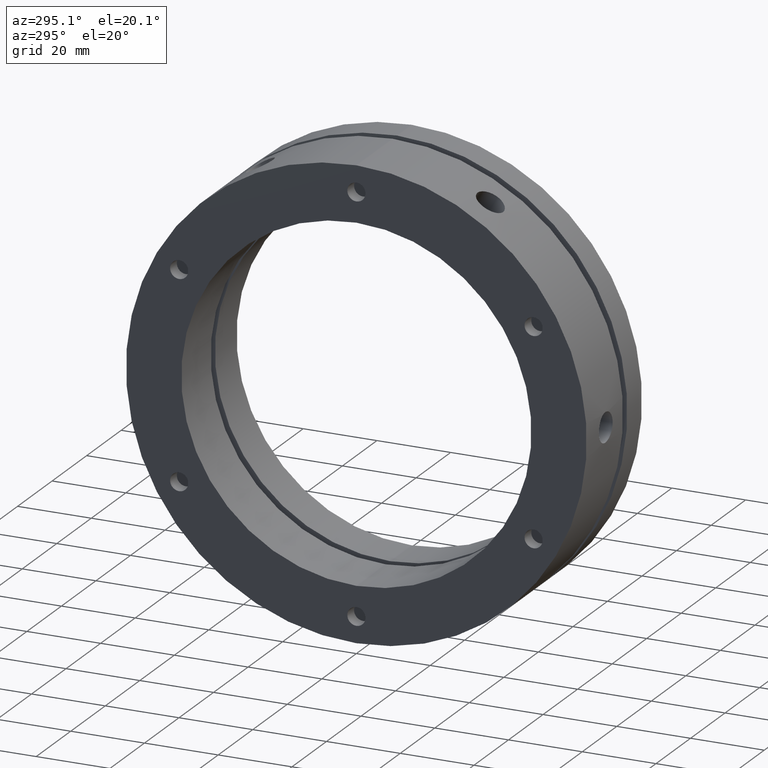
[diagram: clean part render]
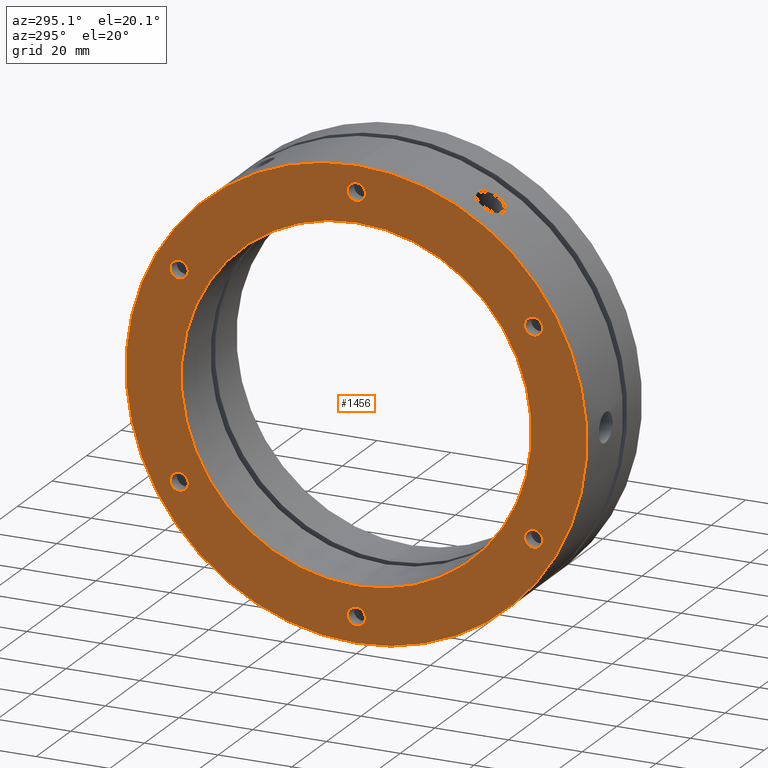
[diagram: same view with one face highlighted and labeled with its STEP entity id]
A machine part, auxiliary view. The second image highlights one B-rep face of the part: STEP entity #1456.
In plain terms, the highlighted planar face has unit normal (-1, 0, 0).
Its self-contained STEP definition (entity closure, byte-faithful):
#25 = VERTEX_POINT ( 'NONE', #1066 ) ;
#31 = VERTEX_POINT ( 'NONE', #1072 ) ;
#38 = VERTEX_POINT ( 'NONE', #1079 ) ;
#47 = VERTEX_POINT ( 'NONE', #1088 ) ;
#79 = VERTEX_POINT ( 'NONE', #1120 ) ;
#113 = VERTEX_POINT ( 'NONE', #1154 ) ;
#115 = VERTEX_POINT ( 'NONE', #1156 ) ;
#132 = VERTEX_POINT ( 'NONE', #1173 ) ;
#133 = VERTEX_POINT ( 'NONE', #1174 ) ;
#159 = VERTEX_POINT ( 'NONE', #1200 ) ;
#169 = VERTEX_POINT ( 'NONE', #1202 ) ;
#182 = VERTEX_POINT ( 'NONE', #1221 ) ;
#184 = VERTEX_POINT ( 'NONE', #1223 ) ;
#186 = VERTEX_POINT ( 'NONE', #1225 ) ;
#187 = VERTEX_POINT ( 'NONE', #1226 ) ;
#189 = VERTEX_POINT ( 'NONE', #1228 ) ;
#524 = CIRCLE ( 'NONE', #3814, 47.50000000000000000 ) ;
#585 = AXIS2_PLACEMENT_3D ( 'NONE', #4289, #4290, #4291 ) ;
#760 = CIRCLE ( 'NONE', #3840, 2.458499999999999000 ) ;
#764 = CIRCLE ( 'NONE', #3842, 2.458500000000002600 ) ;
#847 = EDGE_CURVE ( 'NONE', #189, #186, #764, .T. ) ;
#850 = EDGE_CURVE ( 'NONE', #187, #182, #760, .T. ) ;
#853 = EDGE_CURVE ( 'NONE', #25, #169, #3418, .T. ) ;
#858 = EDGE_CURVE ( 'NONE', #159, #184, #3413, .T. ) ;
#863 = EDGE_CURVE ( 'NONE', #133, #79, #3405, .T. ) ;
#888 = EDGE_CURVE ( 'NONE', #38, #47, #3364, .T. ) ;
#915 = ORIENTED_EDGE ( 'NONE', *, *, #3871, .F. ) ;
#916 = ORIENTED_EDGE ( 'NONE', *, *, #4019, .F. ) ;
#917 = ORIENTED_EDGE ( 'NONE', *, *, #3854, .T. ) ;
#918 = ORIENTED_EDGE ( 'NONE', *, *, #858, .T. ) ;
#919 = ORIENTED_EDGE ( 'NONE', *, *, #3857, .T. ) ;
#920 = ORIENTED_EDGE ( 'NONE', *, *, #853, .T. ) ;
#921 = ORIENTED_EDGE ( 'NONE', *, *, #3847, .T. ) ;
#922 = ORIENTED_EDGE ( 'NONE', *, *, #847, .T. ) ;
#923 = ORIENTED_EDGE ( 'NONE', *, *, #3863, .T. ) ;
#924 = ORIENTED_EDGE ( 'NONE', *, *, #850, .T. ) ;
#925 = ORIENTED_EDGE ( 'NONE', *, *, #3858, .T. ) ;
#926 = ORIENTED_EDGE ( 'NONE', *, *, #863, .T. ) ;
#927 = ORIENTED_EDGE ( 'NONE', *, *, #3860, .T. ) ;
#928 = ORIENTED_EDGE ( 'NONE', *, *, #888, .T. ) ;
#929 = ORIENTED_EDGE ( 'NONE', *, *, #1402, .T. ) ;
#930 = ORIENTED_EDGE ( 'NONE', *, *, #3859, .T. ) ;
#1066 = CARTESIAN_POINT ( 'NONE',  ( -1.561251128379126400E-014, 48.06440991003636000, -25.29150000000003500 ) ) ;
#1072 = CARTESIAN_POINT ( 'NONE',  ( -1.387778780781445700E-014, 5.817072295949928200E-015, 47.50000000000000000 ) ) ;
#1079 = CARTESIAN_POINT ( 'NONE',  ( -1.561251128379126400E-014, 0.0000000000000000000, 57.95850000000002900 ) ) ;
#1088 = CARTESIAN_POINT ( 'NONE',  ( -1.561251128379126400E-014, 3.010794155703764200E-016, 53.04150000000002800 ) ) ;
#1120 = CARTESIAN_POINT ( 'NONE',  ( -1.561251128379126400E-014, -48.06440991003636800, 25.29150000000002100 ) ) ;
#1154 = CARTESIAN_POINT ( 'NONE',  ( -1.387778780781445700E-014, 0.0000000000000000000, -47.50000000000000000 ) ) ;
#1156 = CARTESIAN_POINT ( 'NONE',  ( -1.734723475976807100E-014, 0.0000000000000000000, -62.50000000000000000 ) ) ;
#1173 = CARTESIAN_POINT ( 'NONE',  ( -1.734723475976807100E-014, 7.654042494670957800E-015, 62.50000000000000000 ) ) ;
#1174 = CARTESIAN_POINT ( 'NONE',  ( -1.561251128379126400E-014, -48.06440991003636800, 30.20850000000001500 ) ) ;
#1200 = CARTESIAN_POINT ( 'NONE',  ( -1.561251128379126400E-014, 48.06440991003638900, 30.20849999999998300 ) ) ;
#1202 = CARTESIAN_POINT ( 'NONE',  ( -1.561251128379126400E-014, 48.06440991003636000, -30.20850000000003300 ) ) ;
#1221 = CARTESIAN_POINT ( 'NONE',  ( -1.561251128379126400E-014, -48.06440991003636800, -30.20850000000000400 ) ) ;
#1223 = CARTESIAN_POINT ( 'NONE',  ( -1.561251128379126400E-014, 48.06440991003638900, 25.29149999999997800 ) ) ;
#1225 = CARTESIAN_POINT ( 'NONE',  ( -1.561251128379126400E-014, -4.139812584429623600E-015, -57.95850000000002900 ) ) ;
#1226 = CARTESIAN_POINT ( 'NONE',  ( -1.561251128379126400E-014, -48.06440991003636800, -25.29150000000000600 ) ) ;
#1228 = CARTESIAN_POINT ( 'NONE',  ( -1.561251128379126400E-014, -4.440891999999999900E-015, -53.04150000000002800 ) ) ;
#1275 = CARTESIAN_POINT ( 'NONE',  ( -1.561251128379126400E-014, -4.440891999999999900E-015, -55.50000000000002800 ) ) ;
#1276 = DIRECTION ( 'NONE',  ( 1.000000000000000000, -0.0000000000000000000, -0.0000000000000000000 ) ) ;
#1277 = DIRECTION ( 'NONE',  ( 0.0000000000000000000, 0.0000000000000000000, 1.000000000000000000 ) ) ;
#1284 = CARTESIAN_POINT ( 'NONE',  ( -1.561251128379126400E-014, -48.06440991003636800, -27.75000000000000400 ) ) ;
#1285 = DIRECTION ( 'NONE',  ( 1.000000000000000000, -0.0000000000000000000, -0.0000000000000000000 ) ) ;
#1286 = DIRECTION ( 'NONE',  ( 0.0000000000000000000, 0.0000000000000000000, 1.000000000000000000 ) ) ;
#1290 = CARTESIAN_POINT ( 'NONE',  ( -1.561251128379126400E-014, 48.06440991003636000, -27.75000000000003600 ) ) ;
#1291 = DIRECTION ( 'NONE',  ( 1.000000000000000000, -0.0000000000000000000, -0.0000000000000000000 ) ) ;
#1292 = DIRECTION ( 'NONE',  ( 0.0000000000000000000, 0.0000000000000000000, 1.000000000000000000 ) ) ;
#1302 = CARTESIAN_POINT ( 'NONE',  ( -1.561251128379126400E-014, 48.06440991003638900, 27.74999999999997900 ) ) ;
#1303 = DIRECTION ( 'NONE',  ( 1.000000000000000000, -0.0000000000000000000, -0.0000000000000000000 ) ) ;
#1304 = DIRECTION ( 'NONE',  ( 0.0000000000000000000, 0.0000000000000000000, 1.000000000000000000 ) ) ;
#1316 = CARTESIAN_POINT ( 'NONE',  ( -1.561251128379126400E-014, -48.06440991003636800, 27.75000000000001800 ) ) ;
#1317 = DIRECTION ( 'NONE',  ( 1.000000000000000000, -0.0000000000000000000, -0.0000000000000000000 ) ) ;
#1318 = DIRECTION ( 'NONE',  ( 0.0000000000000000000, 0.0000000000000000000, 1.000000000000000000 ) ) ;
#1402 = EDGE_CURVE ( 'NONE', #31, #113, #524, .T. ) ;
#1456 = ADVANCED_FACE ( 'NONE', ( #1654, #1650, #1653, #1657, #1652, #1649, #1648, #1647 ), #2622, .T. ) ;
#1647 = FACE_OUTER_BOUND ( 'NONE', #3729, .T. ) ;
#1648 = FACE_BOUND ( 'NONE', #3730, .T. ) ;
#1649 = FACE_BOUND ( 'NONE', #3731, .T. ) ;
#1650 = FACE_BOUND ( 'NONE', #3738, .T. ) ;
#1652 = FACE_BOUND ( 'NONE', #3737, .T. ) ;
#1653 = FACE_BOUND ( 'NONE', #3735, .T. ) ;
#1654 = FACE_BOUND ( 'NONE', #3732, .T. ) ;
#1657 = FACE_BOUND ( 'NONE', #3736, .T. ) ;
#1914 = CIRCLE ( 'NONE', #3505, 2.458500000000002600 ) ;
#1923 = CIRCLE ( 'NONE', #3498, 2.458500000000002600 ) ;
#1927 = CIRCLE ( 'NONE', #3495, 2.458499999999999000 ) ;
#1928 = CIRCLE ( 'NONE', #3494, 2.458499999999999000 ) ;
#1929 = CIRCLE ( 'NONE', #3493, 47.50000000000000000 ) ;
#1930 = CIRCLE ( 'NONE', #3492, 2.458500000000002600 ) ;
#1932 = CIRCLE ( 'NONE', #3491, 2.458499999999999000 ) ;
#1940 = CIRCLE ( 'NONE', #3488, 62.50000000000000000 ) ;
#2142 = CIRCLE ( 'NONE', #585, 62.50000000000000000 ) ;
#2406 = CARTESIAN_POINT ( 'NONE',  ( -1.561251128379126400E-014, 0.0000000000000000000, 55.50000000000002800 ) ) ;
#2407 = DIRECTION ( 'NONE',  ( 1.000000000000000000, -0.0000000000000000000, -0.0000000000000000000 ) ) ;
#2408 = DIRECTION ( 'NONE',  ( 0.0000000000000000000, 0.0000000000000000000, 1.000000000000000000 ) ) ;
#2469 = CARTESIAN_POINT ( 'NONE',  ( -1.387778780781445700E-014, 0.0000000000000000000, 0.0000000000000000000 ) ) ;
#2470 = DIRECTION ( 'NONE',  ( 1.000000000000000000, 0.0000000000000000000, 0.0000000000000000000 ) ) ;
#2471 = DIRECTION ( 'NONE',  ( 0.0000000000000000000, 0.0000000000000000000, -1.000000000000000000 ) ) ;
#2615 = CARTESIAN_POINT ( 'NONE',  ( -1.570630000000000000E-014, 55.00000000000000000, 0.0000000000000000000 ) ) ;
#2617 = DIRECTION ( 'NONE',  ( -1.000000000000000000, 0.0000000000000000000, 0.0000000000000000000 ) ) ;
#2622 = PLANE ( 'NONE',  #3780 ) ;
#2624 = DIRECTION ( 'NONE',  ( 0.0000000000000000000, 0.0000000000000000000, 1.000000000000000000 ) ) ;
#2994 = CARTESIAN_POINT ( 'NONE',  ( -1.561251128379126400E-014, -4.440891999999999900E-015, -55.50000000000002800 ) ) ;
#2995 = DIRECTION ( 'NONE',  ( 1.000000000000000000, -0.0000000000000000000, -0.0000000000000000000 ) ) ;
#2996 = DIRECTION ( 'NONE',  ( 0.0000000000000000000, 0.0000000000000000000, 1.000000000000000000 ) ) ;
#3015 = CARTESIAN_POINT ( 'NONE',  ( -1.561251128379126400E-014, 48.06440991003638900, 27.74999999999997900 ) ) ;
#3016 = DIRECTION ( 'NONE',  ( 1.000000000000000000, -0.0000000000000000000, -0.0000000000000000000 ) ) ;
#3017 = DIRECTION ( 'NONE',  ( 0.0000000000000000000, 0.0000000000000000000, 1.000000000000000000 ) ) ;
#3024 = CARTESIAN_POINT ( 'NONE',  ( -1.561251128379126400E-014, 48.06440991003636000, -27.75000000000003600 ) ) ;
#3025 = DIRECTION ( 'NONE',  ( 1.000000000000000000, -0.0000000000000000000, -0.0000000000000000000 ) ) ;
#3026 = DIRECTION ( 'NONE',  ( 0.0000000000000000000, 0.0000000000000000000, 1.000000000000000000 ) ) ;
#3027 = CARTESIAN_POINT ( 'NONE',  ( -1.561251128379126400E-014, -48.06440991003636800, 27.75000000000001800 ) ) ;
#3028 = DIRECTION ( 'NONE',  ( 1.000000000000000000, -0.0000000000000000000, -0.0000000000000000000 ) ) ;
#3029 = DIRECTION ( 'NONE',  ( 0.0000000000000000000, 0.0000000000000000000, 1.000000000000000000 ) ) ;
#3032 = CARTESIAN_POINT ( 'NONE',  ( -1.387778780781445700E-014, 0.0000000000000000000, 0.0000000000000000000 ) ) ;
#3033 = DIRECTION ( 'NONE',  ( 1.000000000000000000, 0.0000000000000000000, 0.0000000000000000000 ) ) ;
#3034 = DIRECTION ( 'NONE',  ( 0.0000000000000000000, 0.0000000000000000000, -1.000000000000000000 ) ) ;
#3036 = CARTESIAN_POINT ( 'NONE',  ( -1.561251128379126400E-014, 0.0000000000000000000, 55.50000000000002800 ) ) ;
#3037 = DIRECTION ( 'NONE',  ( 1.000000000000000000, -0.0000000000000000000, -0.0000000000000000000 ) ) ;
#3038 = DIRECTION ( 'NONE',  ( 0.0000000000000000000, 0.0000000000000000000, 1.000000000000000000 ) ) ;
#3044 = CARTESIAN_POINT ( 'NONE',  ( -1.561251128379126400E-014, -48.06440991003636800, -27.75000000000000400 ) ) ;
#3045 = DIRECTION ( 'NONE',  ( 1.000000000000000000, -0.0000000000000000000, -0.0000000000000000000 ) ) ;
#3046 = DIRECTION ( 'NONE',  ( 0.0000000000000000000, 0.0000000000000000000, 1.000000000000000000 ) ) ;
#3158 = CARTESIAN_POINT ( 'NONE',  ( -1.734723475976807100E-014, 0.0000000000000000000, 0.0000000000000000000 ) ) ;
#3159 = DIRECTION ( 'NONE',  ( 1.000000000000000000, 0.0000000000000000000, 0.0000000000000000000 ) ) ;
#3160 = DIRECTION ( 'NONE',  ( 0.0000000000000000000, 0.0000000000000000000, -1.000000000000000000 ) ) ;
#3364 = CIRCLE ( 'NONE', #3827, 2.458500000000002600 ) ;
#3405 = CIRCLE ( 'NONE', #3835, 2.458499999999999000 ) ;
#3413 = CIRCLE ( 'NONE', #3837, 2.458500000000002600 ) ;
#3418 = CIRCLE ( 'NONE', #3839, 2.458499999999999000 ) ;
#3488 = AXIS2_PLACEMENT_3D ( 'NONE', #3158, #3159, #3160 ) ;
#3491 = AXIS2_PLACEMENT_3D ( 'NONE', #3044, #3045, #3046 ) ;
#3492 = AXIS2_PLACEMENT_3D ( 'NONE', #3036, #3037, #3038 ) ;
#3493 = AXIS2_PLACEMENT_3D ( 'NONE', #3032, #3033, #3034 ) ;
#3494 = AXIS2_PLACEMENT_3D ( 'NONE', #3027, #3028, #3029 ) ;
#3495 = AXIS2_PLACEMENT_3D ( 'NONE', #3024, #3025, #3026 ) ;
#3498 = AXIS2_PLACEMENT_3D ( 'NONE', #3015, #3016, #3017 ) ;
#3505 = AXIS2_PLACEMENT_3D ( 'NONE', #2994, #2995, #2996 ) ;
#3729 = EDGE_LOOP ( 'NONE', ( #916, #915 ) ) ;
#3730 = EDGE_LOOP ( 'NONE', ( #918, #917 ) ) ;
#3731 = EDGE_LOOP ( 'NONE', ( #920, #919 ) ) ;
#3732 = EDGE_LOOP ( 'NONE', ( #930, #929 ) ) ;
#3735 = EDGE_LOOP ( 'NONE', ( #926, #925 ) ) ;
#3736 = EDGE_LOOP ( 'NONE', ( #924, #923 ) ) ;
#3737 = EDGE_LOOP ( 'NONE', ( #922, #921 ) ) ;
#3738 = EDGE_LOOP ( 'NONE', ( #928, #927 ) ) ;
#3780 = AXIS2_PLACEMENT_3D ( 'NONE', #2615, #2617, #2624 ) ;
#3814 = AXIS2_PLACEMENT_3D ( 'NONE', #2469, #2470, #2471 ) ;
#3827 = AXIS2_PLACEMENT_3D ( 'NONE', #2406, #2407, #2408 ) ;
#3835 = AXIS2_PLACEMENT_3D ( 'NONE', #1316, #1317, #1318 ) ;
#3837 = AXIS2_PLACEMENT_3D ( 'NONE', #1302, #1303, #1304 ) ;
#3839 = AXIS2_PLACEMENT_3D ( 'NONE', #1290, #1291, #1292 ) ;
#3840 = AXIS2_PLACEMENT_3D ( 'NONE', #1284, #1285, #1286 ) ;
#3842 = AXIS2_PLACEMENT_3D ( 'NONE', #1275, #1276, #1277 ) ;
#3847 = EDGE_CURVE ( 'NONE', #186, #189, #1914, .T. ) ;
#3854 = EDGE_CURVE ( 'NONE', #184, #159, #1923, .T. ) ;
#3857 = EDGE_CURVE ( 'NONE', #169, #25, #1927, .T. ) ;
#3858 = EDGE_CURVE ( 'NONE', #79, #133, #1928, .T. ) ;
#3859 = EDGE_CURVE ( 'NONE', #113, #31, #1929, .T. ) ;
#3860 = EDGE_CURVE ( 'NONE', #47, #38, #1930, .T. ) ;
#3863 = EDGE_CURVE ( 'NONE', #182, #187, #1932, .T. ) ;
#3871 = EDGE_CURVE ( 'NONE', #132, #115, #1940, .T. ) ;
#4019 = EDGE_CURVE ( 'NONE', #115, #132, #2142, .T. ) ;
#4289 = CARTESIAN_POINT ( 'NONE',  ( -1.734723475976807100E-014, 0.0000000000000000000, 0.0000000000000000000 ) ) ;
#4290 = DIRECTION ( 'NONE',  ( 1.000000000000000000, 0.0000000000000000000, 0.0000000000000000000 ) ) ;
#4291 = DIRECTION ( 'NONE',  ( 0.0000000000000000000, 0.0000000000000000000, -1.000000000000000000 ) ) ;